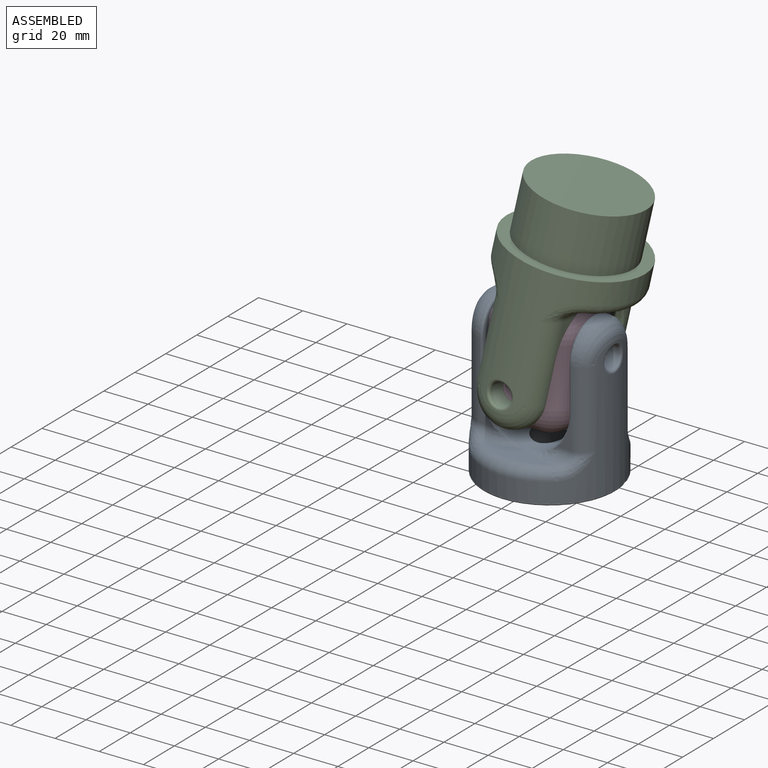
[diagram: assembled view]
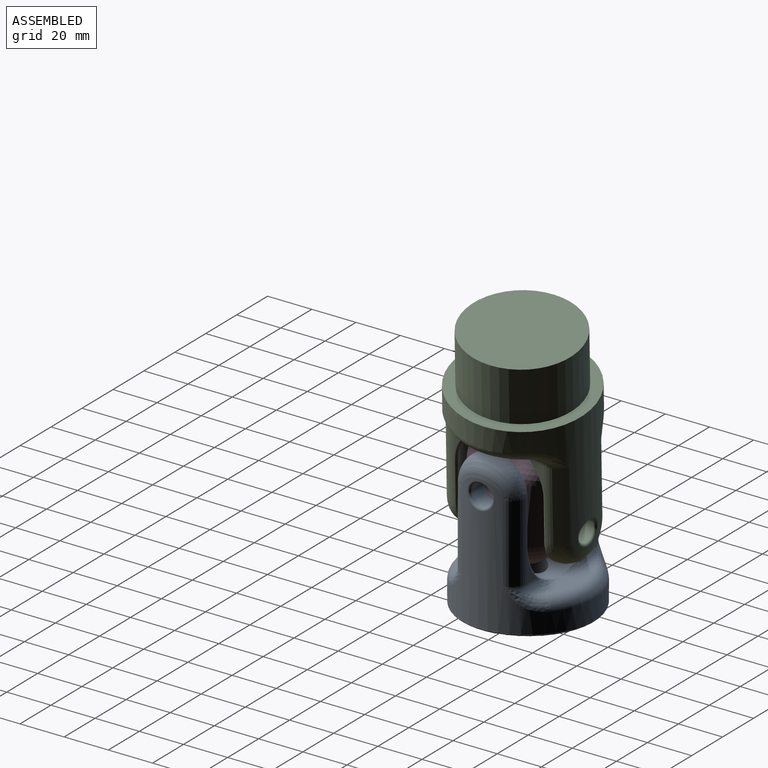
[diagram: assembled view, second angle]
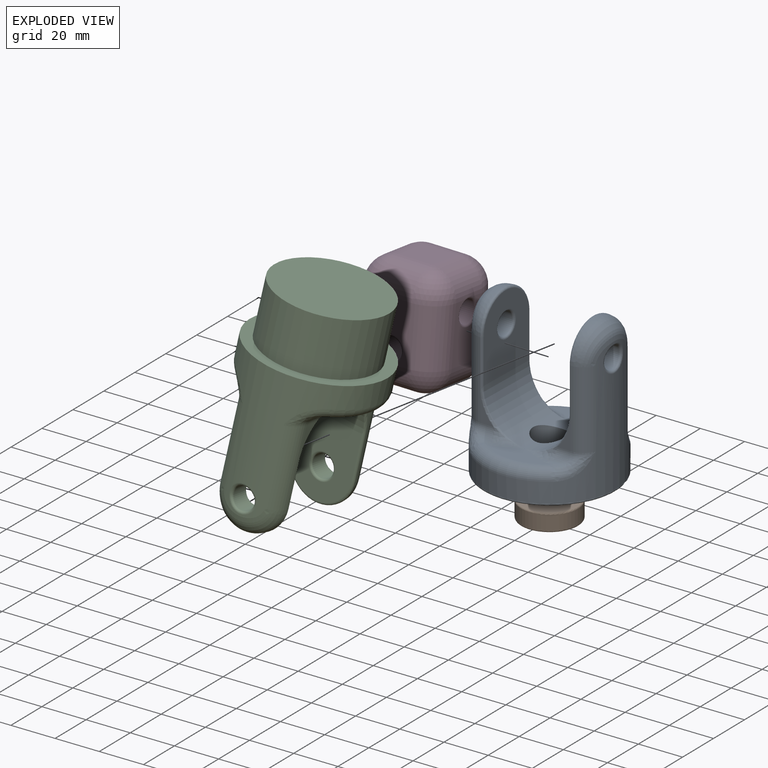
[diagram: exploded view]
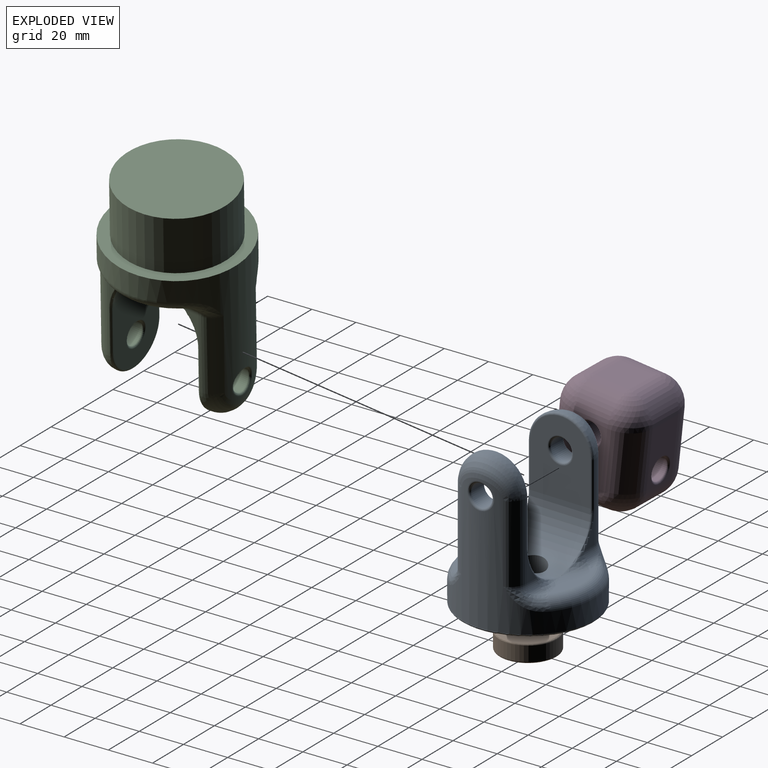
[diagram: exploded view, second angle]
ASSEMBLY  parts=4 mates=6
PART A: 79 faces, bbox 65.1x68.5x71.4 mm
  f0: plane 30.12x10.12mm, normal (0,0,1), area 163.4mm2, adj f1,f73,f74,f75,f76,f77,f78
  f1: cylinder r=5mm len=6.16mm, axis (0,-1,0), area 40.1mm2, adj f0,f2,f71,f72,f78
  f2: torus R=13mm, axis (0,0,-1), area 23.4mm2, adj f1,f3,f70
  f3: bspline ~9.37x8.39mm, area 23mm2, adj f2,f4,f72
  f4: cylinder r=30mm len=61mm, axis (0,0,-1), area 3648.9mm2, adj f3,f5,f55,f56,f57,f58,f59,f60
  f5: bspline ~12.42x12.02mm, area 57mm2, adj f4,f6
  f6: cylinder r=5mm len=10mm, axis (0,-1,0), area 250.2mm2, adj f5,f7
  f7: torus R=6mm, axis (0,1,0), area 52.9mm2, adj f6,f8
  f8: plane 34x28mm, normal (0,1,0), area 754.7mm2, adj f7,f9,f14,f15,f17,f18,f48
  f9: cylinder r=1mm len=20mm, axis (0,0,-1), area 31.8mm2, adj f8,f10,f14,f61
  f10: bspline ~5.52x1.58mm, area 3.8mm2, adj f9,f11,f48,f61
  f11: torus R=21mm, axis (1,0,0), area 30.9mm2, adj f10,f12,f13,f48,f75
  f12: bspline ~6.64x1.07mm, area 1mm2, adj f11,f48,f76
  f13: plane 12.55x6.16mm, normal (1,0,0), area 27.4mm2, adj f11,f61,f74
  f14: bspline ~8.45x2.53mm, area 8.3mm2, adj f8,f9,f15,f60
  f15: torus R=14mm, axis (0,1,0), area 55.8mm2, adj f8,f14,f16,f17
  f16: cylinder r=15mm len=28.1mm, axis (0,-1,0), area 0mm2, adj f15,f60
  f17: bspline ~8.45x2.53mm, area 8.3mm2, adj f8,f15,f18,f60
  f18: cylinder r=1mm len=20mm, axis (0,0,-1), area 31.8mm2, adj f8,f17,f19,f59
  f19: bspline ~6.11x1.31mm, area 3.8mm2, adj f18,f20,f48,f59
  f20: torus R=21mm, axis (1,0,0), area 30.9mm2, adj f19,f21,f46,f47,f48
  f21: plane 12.55x6.16mm, normal (-1,0,0), area 27.4mm2, adj f20,f22,f59
  f22: cylinder r=5mm len=6.16mm, axis (0,1,0), area 40.1mm2, adj f21,f23,f45,f46,f57
  f23: plane 30x10mm, normal (0,0,1), area 163.4mm2, adj f22,f24,f42,f43,f44,f46,f56
  f24: cylinder r=5mm len=6.16mm, axis (0,1,0), area 40.1mm2, adj f23,f25,f41,f42,f68
  f25: plane 12.55x6.16mm, normal (-1,0,0), area 27.4mm2, adj f24,f26,f66
  f26: torus R=21mm, axis (1,0,0), area 30.9mm2, adj f25,f27,f40,f42,f48
  f27: bspline ~5.52x1.58mm, area 3.8mm2, adj f26,f28,f48,f66
  f28: cylinder r=1mm len=20mm, axis (0,0,-1), area 31.8mm2, adj f27,f29,f39,f66
  f29: plane 34x28mm, normal (0,-1,0), area 754.7mm2, adj f28,f30,f32,f33,f37,f39,f48
  f30: torus R=14mm, axis (0,1,0), area 55.8mm2, adj f29,f31,f32,f39
  f31: cylinder r=15mm len=28.1mm, axis (0,-1,0), area 0mm2, adj f30,f65
  f32: bspline ~8.45x2.53mm, area 8.3mm2, adj f29,f30,f33,f65
  f33: cylinder r=1mm len=20mm, axis (0,0,-1), area 31.8mm2, adj f29,f32,f34,f70
  f34: bspline ~6.11x1.31mm, area 3.8mm2, adj f33,f35,f48,f70
  f35: torus R=21mm, axis (1,0,0), area 30.9mm2, adj f34,f36,f48,f71,f78
  f36: bspline ~6.64x1.07mm, area 1mm2, adj f35,f48,f77
  f37: torus R=6mm, axis (0,1,0), area 52.9mm2, adj f29,f38
  f38: cylinder r=5mm len=10mm, axis (0,-1,0), area 250.2mm2, adj f37,f55
  f39: bspline ~8.45x2.53mm, area 8.3mm2, adj f28,f29,f30,f65
  f40: bspline ~6.64x1.07mm, area 1mm2, adj f26,f43,f48
  f41: torus R=13mm, axis (0,0,-1), area 23.4mm2, adj f24,f66,f67
  f42: bspline ~14.31x5.92mm, area 49.2mm2, adj f23,f24,f26,f43
  f43: bspline ~6.45x2.53mm, area 7.5mm2, adj f23,f40,f42
  f44: bspline ~6.24x2.47mm, area 5.1mm2, adj f23,f46,f47
  f45: torus R=13mm, axis (0,0,-1), area 23.4mm2, adj f22,f58,f59
  f46: bspline ~14.31x5.92mm, area 49.2mm2, adj f20,f22,f23,f44
  f47: bspline ~6.64x1.07mm, area 1mm2, adj f20,f44,f48
  f48: cylinder r=20mm len=40mm, axis (-1,0,0), area 1591.5mm2, adj f8,f10,f11,f12,f19,f20,f26,f27
  f49: cylinder r=7.5mm len=15mm, axis (0,0,-1), area 329.9mm2, adj f48,f50
  f50: plane 25x25mm, normal (0,0,-1), area 314.2mm2, adj f49,f51
  f51: torus R=12.5mm, axis (0,0,-1), area 63.3mm2, adj f50,f52
  f52: cylinder r=13mm len=26mm, axis (0,0,-1), area 530.9mm2, adj f51,f53
  f53: torus R=14mm, axis (0,0,1), area 131.9mm2, adj f52,f54
  f54: plane 58x58mm, normal (0,0,-1), area 2026.3mm2, adj f53,f69
  f55: bspline ~12.42x12.02mm, area 57mm2, adj f4,f38
  f56: torus R=25mm, axis (0,0,-1), area 284.9mm2, adj f4,f23,f57,f68
  f57: bspline ~12.35x9.56mm, area 58.4mm2, adj f4,f22,f56,f58
  f58: bspline ~9.37x8.39mm, area 24mm2, adj f4,f45,f57
  f59: cylinder r=8mm len=35mm, axis (0,0,-1), area 345.7mm2, adj f4,f18,f19,f21,f45,f60
  f60: bspline ~30x16.64mm, area 449.8mm2, adj f4,f14,f16,f17,f59,f61
  f61: cylinder r=8mm len=35mm, axis (0,0,-1), area 345.7mm2, adj f4,f9,f10,f13,f60,f62
  f62: torus R=13mm, axis (0,0,-1), area 23.4mm2, adj f61,f63,f74
  f63: bspline ~7.83x7.83mm, area 30.3mm2, adj f4,f62,f64
  f64: bspline ~12.35x9.56mm, area 58.4mm2, adj f4,f63,f73,f74
  f65: bspline ~30x16.64mm, area 449.8mm2, adj f4,f31,f32,f39,f66,f70
  f66: cylinder r=8mm len=35mm, axis (0,0,-1), area 345.7mm2, adj f4,f25,f27,f28,f41,f65
  f67: bspline ~7.83x7.83mm, area 21.7mm2, adj f4,f41,f68
  f68: bspline ~13.1x10.81mm, area 58.4mm2, adj f4,f24,f56,f67
  f69: torus R=29mm, axis (0,0,1), area 292.5mm2, adj f4,f54
  f70: cylinder r=8mm len=35mm, axis (0,0,-1), area 345.7mm2, adj f2,f4,f33,f34,f65,f71
  f71: plane 12.55x6.16mm, normal (1,0,0), area 27.4mm2, adj f1,f35,f70
  f72: bspline ~12.35x9.56mm, area 58.4mm2, adj f1,f3,f4,f73
  f73: torus R=25mm, axis (0,0,-1), area 284.9mm2, adj f0,f4,f64,f72
  f74: cylinder r=5mm len=6.16mm, axis (0,-1,0), area 40.1mm2, adj f0,f13,f62,f64,f75
  f75: bspline ~14.31x5.92mm, area 49.2mm2, adj f0,f11,f74,f76
  f76: bspline ~6.26x2.48mm, area 5.1mm2, adj f0,f12,f75
  f77: bspline ~6.5x2.55mm, area 5.1mm2, adj f0,f36,f78
  f78: bspline ~14.31x5.92mm, area 49.2mm2, adj f0,f1,f35,f77
PART B: 8 faces, bbox 28.1x28.1x8 mm
  f0: cylinder r=5mm len=10mm, axis (0,0,-1), area 207.3mm2, adj f4,f6
  f1: cylinder r=13mm len=26mm, axis (0,0,-1), area 539.1mm2, adj f5,f7
  f2: plane 24.6x24.6mm, normal (0,0,1), area 373.2mm2, adj f6,f7
  f3: plane 24.6x24.6mm, normal (0,0,-1), area 373.2mm2, adj f4,f5
  f4: torus R=5.7mm, axis (0,0,1), area 36.3mm2, adj f0,f3
  f5: torus R=12.3mm, axis (0,0,1), area 88.1mm2, adj f1,f3
  f6: torus R=5.7mm, axis (0,0,1), area 36.3mm2, adj f0,f2
  f7: torus R=12.3mm, axis (0,0,1), area 88.1mm2, adj f1,f2
PART C: 75 faces, bbox 65x68.5x96.3 mm
  f0: plane 30.09x10.09mm, normal (0,0,-1), area 163.4mm2, adj f1,f69,f70,f71,f72,f73,f74
  f1: cylinder r=5mm len=6.16mm, axis (0,1,0), area 40.1mm2, adj f0,f2,f67,f68,f74
  f2: bspline ~12.35x9.56mm, area 58.4mm2, adj f1,f3,f66,f69
  f3: cylinder r=30mm len=62mm, axis (0,0,1), area 3837.2mm2, adj f2,f4,f48,f49,f50,f51,f52,f53
  f4: bspline ~12.42x12.02mm, area 57mm2, adj f3,f5
  f5: cylinder r=5mm len=10mm, axis (0,1,0), area 241.5mm2, adj f4,f6
  f6: torus R=6mm, axis (0,1,0), area 52.9mm2, adj f5,f7
  f7: plane 34x28mm, normal (0,-1,0), area 754.7mm2, adj f6,f8,f10,f11,f15,f46,f47
  f8: torus R=14mm, axis (0,1,0), area 55.8mm2, adj f7,f9,f10,f47
  f9: cylinder r=15mm len=28.1mm, axis (0,1,0), area 0mm2, adj f8,f49
  f10: bspline ~7.31x2.04mm, area 8.3mm2, adj f7,f8,f11,f49
  f11: cylinder r=1mm len=20mm, axis (0,0,1), area 31.8mm2, adj f7,f10,f12,f65
  f12: bspline ~6.11x1.31mm, area 3.8mm2, adj f11,f13,f15,f65
  f13: torus R=21mm, axis (-1,0,0), area 30.9mm2, adj f12,f14,f15,f68,f74
  f14: bspline ~6.64x1.07mm, area 1mm2, adj f13,f15,f73
  f15: cylinder r=20mm len=40mm, axis (1,0,0), area 1771.7mm2, adj f7,f12,f13,f14,f16,f17,f29,f30
  f16: bspline ~5.52x1.58mm, area 3.8mm2, adj f15,f17,f46,f50
  f17: torus R=21mm, axis (-1,0,0), area 30.9mm2, adj f15,f16,f18,f28,f29
  f18: bspline ~14.31x5.92mm, area 49.2mm2, adj f17,f19,f20,f22
  f19: bspline ~6.24x2.47mm, area 5.1mm2, adj f18,f22,f29
  f20: cylinder r=5mm len=6.16mm, axis (0,-1,0), area 40.1mm2, adj f18,f21,f22,f28,f52
  f21: torus R=13mm, axis (0,0,-1), area 23.4mm2, adj f20,f50,f51
  f22: plane 30x10mm, normal (0,0,-1), area 163.4mm2, adj f18,f19,f20,f23,f24,f25,f56
  f23: bspline ~6.45x2.53mm, area 7.5mm2, adj f22,f24,f30
  f24: bspline ~14.31x5.92mm, area 49.2mm2, adj f22,f23,f25,f31
  f25: cylinder r=5mm len=6.16mm, axis (0,-1,0), area 40.1mm2, adj f22,f24,f26,f27,f57
  f26: torus R=13mm, axis (0,0,-1), area 23.4mm2, adj f25,f58,f59
  f27: plane 12.55x6.16mm, normal (1,0,0), area 27.4mm2, adj f25,f31,f59
  f28: plane 12.55x6.16mm, normal (1,0,0), area 27.4mm2, adj f17,f20,f50
  f29: bspline ~6.64x1.07mm, area 1mm2, adj f15,f17,f19
  f30: bspline ~6.64x1.07mm, area 1mm2, adj f15,f23,f31
  f31: torus R=21mm, axis (-1,0,0), area 30.9mm2, adj f15,f24,f27,f30,f32
  f32: bspline ~6.11x1.31mm, area 3.8mm2, adj f15,f31,f33,f59
  f33: cylinder r=1mm len=20mm, axis (0,0,1), area 31.8mm2, adj f32,f34,f39,f59
  f34: bspline ~8.45x2.53mm, area 8.3mm2, adj f33,f35,f39,f60
  f35: torus R=14mm, axis (0,1,0), area 55.8mm2, adj f34,f36,f37,f39
  f36: cylinder r=15mm len=28.1mm, axis (0,1,0), area 0mm2, adj f35,f60
  f37: bspline ~8.45x2.53mm, area 8.3mm2, adj f35,f38,f39,f60
  f38: cylinder r=1mm len=20mm, axis (0,0,1), area 31.8mm2, adj f37,f39,f42,f61
  f39: plane 34x28mm, normal (0,1,0), area 754.7mm2, adj f15,f33,f34,f35,f37,f38,f40
  f40: torus R=6mm, axis (0,1,0), area 52.9mm2, adj f39,f41
  f41: cylinder r=5mm len=10mm, axis (0,1,0), area 241.5mm2, adj f40,f48
  f42: bspline ~5.52x1.58mm, area 3.8mm2, adj f15,f38,f43,f61
  f43: torus R=21mm, axis (-1,0,0), area 30.9mm2, adj f15,f42,f44,f45,f71
  f44: plane 12.55x6.16mm, normal (-1,0,0), area 27.4mm2, adj f43,f61,f70
  f45: bspline ~6.64x1.07mm, area 1mm2, adj f15,f43,f72
  f46: cylinder r=1mm len=20mm, axis (0,0,1), area 31.8mm2, adj f7,f16,f47,f50
  f47: bspline ~8.45x2.53mm, area 8.3mm2, adj f7,f8,f46,f49
  f48: bspline ~12.42x12.02mm, area 57mm2, adj f3,f41
  f49: bspline ~30x16.64mm, area 449.8mm2, adj f3,f9,f10,f47,f50,f65
  f50: cylinder r=8mm len=35mm, axis (0,0,1), area 345.7mm2, adj f3,f16,f21,f28,f46,f49
  f51: bspline ~9.37x8.39mm, area 23mm2, adj f3,f21,f52
  f52: bspline ~12.35x9.56mm, area 58.4mm2, adj f3,f20,f51,f56
  f53: plane 60x60mm, normal (0,0,1), area 863.9mm2, adj f3,f54
  f54: cylinder r=25mm len=50mm, axis (0,0,-1), area 3927mm2, adj f53,f55
  f55: plane 50x50mm, normal (0,0,1), area 1963.5mm2, adj f54
  f56: torus R=25mm, axis (0,0,-1), area 284.9mm2, adj f3,f22,f52,f57
  f57: bspline ~12.35x9.56mm, area 58.4mm2, adj f3,f25,f56,f58
  f58: bspline ~7.83x7.83mm, area 23.2mm2, adj f3,f26,f57
  f59: cylinder r=8mm len=35mm, axis (0,0,1), area 345.7mm2, adj f3,f26,f27,f32,f33,f60
  f60: bspline ~30x16.64mm, area 449.8mm2, adj f3,f34,f36,f37,f59,f61
  f61: cylinder r=8mm len=35mm, axis (0,0,1), area 345.7mm2, adj f3,f38,f42,f44,f60,f62
  f62: torus R=13mm, axis (0,0,-1), area 23.4mm2, adj f61,f63,f70
  f63: bspline ~9.37x8.39mm, area 24mm2, adj f3,f62,f64
  f64: bspline ~13.1x10.81mm, area 58.4mm2, adj f3,f63,f69,f70
  f65: cylinder r=8mm len=35mm, axis (0,0,1), area 345.7mm2, adj f3,f11,f12,f49,f67,f68
  f66: bspline ~9.39x8.41mm, area 23.2mm2, adj f2,f3,f67
  f67: torus R=13mm, axis (0,0,-1), area 23.4mm2, adj f1,f65,f66
  f68: plane 12.55x6.16mm, normal (-1,0,0), area 27.4mm2, adj f1,f13,f65
  f69: torus R=25mm, axis (0,0,-1), area 284.9mm2, adj f0,f2,f3,f64
  f70: cylinder r=5mm len=6.16mm, axis (0,1,0), area 40.1mm2, adj f0,f44,f62,f64,f71
  f71: bspline ~14.31x5.92mm, area 49.2mm2, adj f0,f43,f70,f72
  f72: bspline ~6.5x2.55mm, area 5.1mm2, adj f0,f45,f71
  f73: bspline ~6.26x2.48mm, area 5.1mm2, adj f0,f14,f74
  f74: bspline ~14.31x5.92mm, area 49.2mm2, adj f0,f1,f13,f73
PART D: 36 faces, bbox 40.1x40.1x50 mm
  f0: plane 26x16mm, normal (0,-1,0), area 304.5mm2, adj f16,f21,f24,f27,f32
  f1: plane 26x16mm, normal (1,0,0), area 304.5mm2, adj f13,f22,f23,f27,f28
  f2: plane 26x16mm, normal (0,1,0), area 304.5mm2, adj f8,f12,f13,f14,f34
  f3: plane 26x16mm, normal (-1,0,0), area 304.5mm2, adj f8,f11,f15,f16,f30
  f4: plane 16x16mm, normal (0,0,1), area 256mm2, adj f11,f12,f21,f22
  f5: plane 16x16mm, normal (0,0,-1), area 256mm2, adj f14,f15,f23,f24
  f6: cylinder r=5mm len=38mm, axis (0,-1,0), area 1193.8mm2, adj f32,f33,f34,f35
  f7: cylinder r=5mm len=38mm, axis (1,0,0), area 1193.8mm2, adj f28,f29,f30,f31
  f8: cylinder r=12mm len=26mm, axis (0,0,1), area 490.1mm2, adj f2,f3,f9,f10
  f9: sphere r=12mm, area 226.2mm2, adj f8,f11,f12
  f10: sphere r=12mm, area 226.2mm2, adj f8,f14,f15
  f11: cylinder r=12mm len=16mm, axis (0,1,0), area 301.6mm2, adj f3,f4,f9,f17
  f12: cylinder r=12mm len=16mm, axis (1,0,0), area 299.8mm2, adj f2,f4,f9,f18,f35
  f13: cylinder r=12mm len=26mm, axis (0,0,-1), area 490.1mm2, adj f1,f2,f18,f19
  f14: cylinder r=12mm len=16mm, axis (-1,0,0), area 301.6mm2, adj f2,f5,f10,f19
  f15: cylinder r=12mm len=16mm, axis (0,-1,0), area 299.8mm2, adj f3,f5,f10,f20,f31
  f16: cylinder r=12mm len=26mm, axis (0,0,-1), area 490.1mm2, adj f0,f3,f17,f20
  f17: sphere r=12mm, area 226.2mm2, adj f11,f16,f21
  f18: sphere r=12mm, area 226.2mm2, adj f12,f13,f22
  f19: sphere r=12mm, area 226.2mm2, adj f13,f14,f23
  f20: sphere r=12mm, area 226.2mm2, adj f15,f16,f24
  f21: cylinder r=12mm len=16mm, axis (-1,0,0), area 299.8mm2, adj f0,f4,f17,f25,f33
  f22: cylinder r=12mm len=16mm, axis (0,-1,0), area 301.6mm2, adj f1,f4,f18,f25
  f23: cylinder r=12mm len=16mm, axis (0,1,0), area 299.8mm2, adj f1,f5,f19,f26,f29
  f24: cylinder r=12mm len=16mm, axis (1,0,0), area 301.6mm2, adj f0,f5,f20,f26
  f25: sphere r=12mm, area 226.2mm2, adj f21,f22,f27
  f26: sphere r=12mm, area 226.2mm2, adj f23,f24,f27
  f27: cylinder r=12mm len=26mm, axis (0,0,1), area 490.1mm2, adj f0,f1,f25,f26
  f28: torus R=6mm, axis (-1,0,0), area 46mm2, adj f1,f7,f29
  f29: bspline ~7.07x2.02mm, area 7.1mm2, adj f7,f23,f28
  f30: torus R=6mm, axis (-1,0,0), area 46mm2, adj f3,f7,f31
  f31: bspline ~7.07x2.02mm, area 7.1mm2, adj f7,f15,f30
  f32: torus R=6mm, axis (0,-1,0), area 46mm2, adj f0,f6,f33
  f33: bspline ~7.07x2.02mm, area 7.1mm2, adj f6,f21,f32
  f34: torus R=6mm, axis (0,-1,0), area 46mm2, adj f2,f6,f35
  f35: bspline ~7.07x2.02mm, area 7.1mm2, adj f6,f12,f34
PLACE A rot(axis=(0,0,1),88.3deg) t=(2.16,-0.52,-84.15)mm fixed
PLACE B rot(axis=(0,0,1),20.7deg) t=(2.16,-0.52,-84.15)mm
PLACE C rot(axis=(-0.53,0.83,-0.19),11.4deg) t=(11.25,3.45,9.88)mm
PLACE D rot(axis=(-0.01,-1,0.05),179.9deg) t=(2.14,-1.33,-36.61)mm
MATE cylindrical A.f37 <-> D.f7  axis (1,-0.03,0) through (-22.86,0.2,-29.15)mm
MATE planar A.f29 <-> D.f1  axis (1,-0.03,0) through (-17.83,0.06,-34.15)mm
MATE cylindrical B.f1 <-> A.f51  axis (0,0,-1) through (2.16,-0.52,-83.45)mm
MATE planar A.f51 <-> B.f1  axis (0,0,-1) through (2.16,-0.52,-76.15)mm
MATE planar C.f39 <-> D.f0  axis (0.03,0.99,-0.11) through (2.37,-21.5,-37.01)mm
MATE cylindrical C.f5 <-> D.f6  axis (0.03,0.99,-0.11) through (2.72,18.74,-46.33)mm
